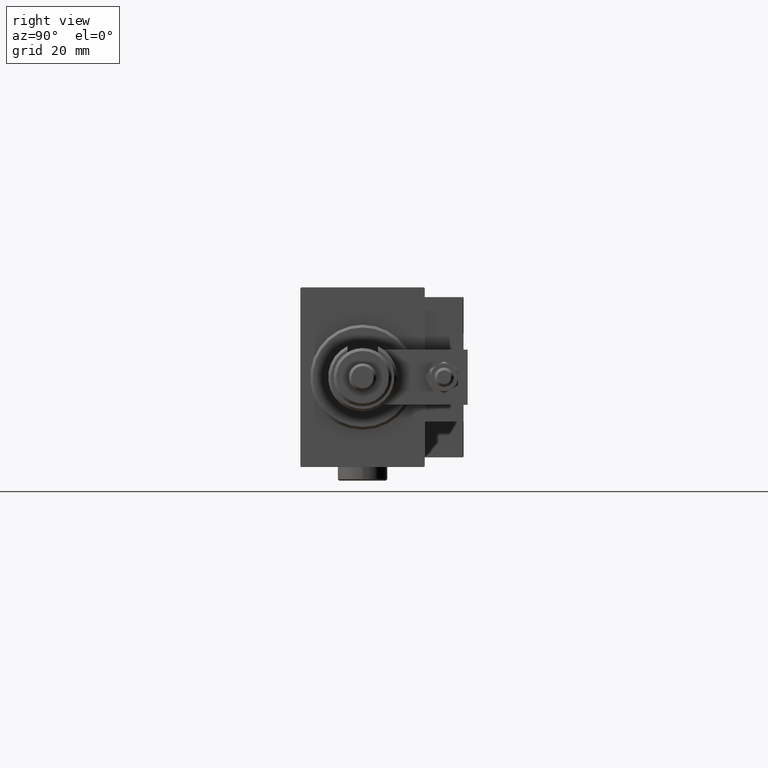
[diagram: clean part render]
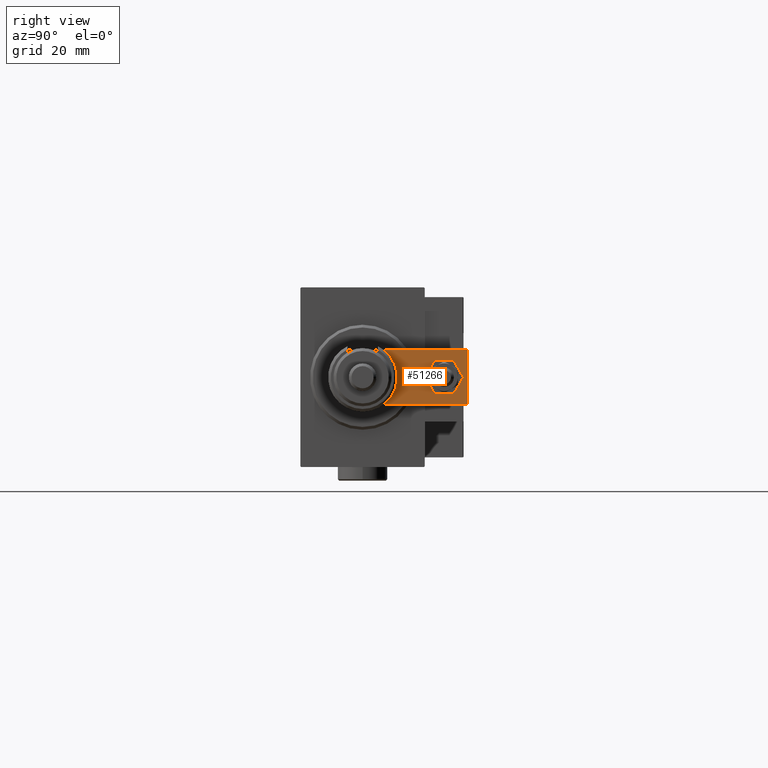
[diagram: same view with one face highlighted and labeled with its STEP entity id]
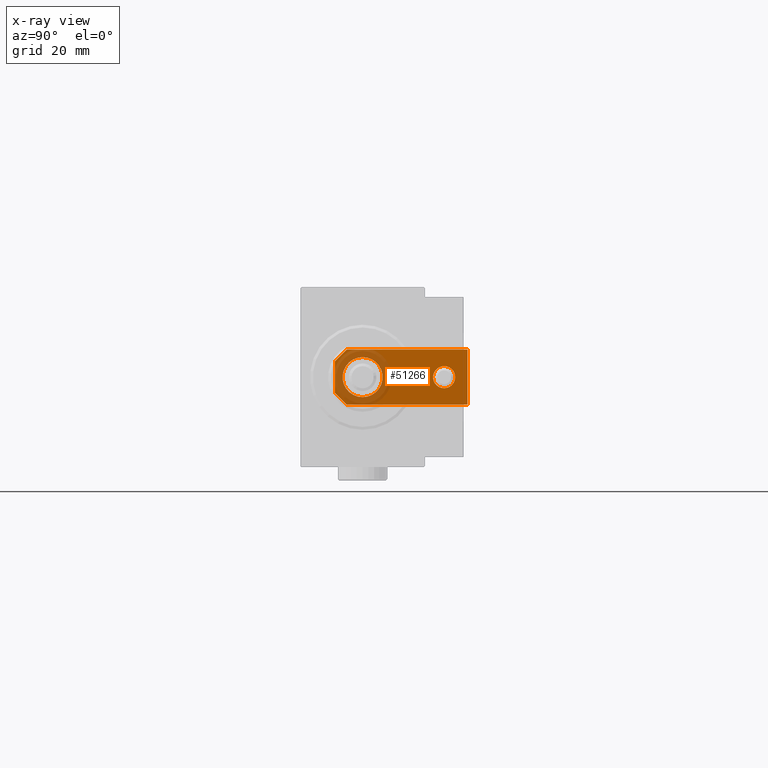
[diagram: x-ray of the same camera — body ghosted, the highlighted face saturated]
A machine part, right view. The second image highlights one B-rep face of the part: STEP entity #51266.
The next image is the same camera in x-ray: the body ghosted, the highlighted face saturated — about 24% of this face is hidden behind the body in this view.
In plain terms, the highlighted planar face has unit normal (1, 0, -0).
Its self-contained STEP definition (entity closure, byte-faithful):
#853 = AXIS2_PLACEMENT_3D ( 'NONE', #26587, #15063, #43314 ) ;
#1416 = DIRECTION ( 'NONE',  ( 0.7071067811865464625, -0.7071067811865486830, 0.000000000000000000 ) ) ;
#1948 = LINE ( 'NONE', #42559, #34772 ) ;
#2787 = VERTEX_POINT ( 'NONE', #26276 ) ;
#2942 = CARTESIAN_POINT ( 'NONE',  ( -10.00000000000000533, 4.240000000000021529, 6.000000000000000000 ) ) ;
#3790 = DIRECTION ( 'NONE',  ( -7.228014483236695816E-17, 1.000000000000000000, 0.000000000000000000 ) ) ;
#4914 = ORIENTED_EDGE ( 'NONE', *, *, #20985, .T. ) ;
#5747 = PLANE ( 'NONE',  #44102 ) ;
#5969 = ORIENTED_EDGE ( 'NONE', *, *, #39455, .F. ) ;
#6511 = ORIENTED_EDGE ( 'NONE', *, *, #9235, .T. ) ;
#6534 = CARTESIAN_POINT ( 'NONE',  ( -10.00000000000000000, 48.00000000000000000, 6.000000000000000000 ) ) ;
#9235 = EDGE_CURVE ( 'NONE', #47734, #15156, #35902, .T. ) ;
#9318 = DIRECTION ( 'NONE',  ( 0.000000000000000000, 0.000000000000000000, 1.000000000000000000 ) ) ;
#9348 = VECTOR ( 'NONE', #1416, 999.9999999999998863 ) ;
#9763 = VERTEX_POINT ( 'NONE', #22088 ) ;
#10138 = DIRECTION ( 'NONE',  ( -0.000000000000000000, 0.000000000000000000, 1.000000000000000000 ) ) ;
#12994 = EDGE_CURVE ( 'NONE', #43224, #46915, #41357, .T. ) ;
#13674 = VERTEX_POINT ( 'NONE', #38392 ) ;
#13713 = CARTESIAN_POINT ( 'NONE',  ( -9.629649721936179265E-32, 10.00000000000000178, 6.000000000000000000 ) ) ;
#15063 = DIRECTION ( 'NONE',  ( 0.000000000000000000, 0.000000000000000000, 1.000000000000000000 ) ) ;
#15071 = CARTESIAN_POINT ( 'NONE',  ( 4.000000000000000888, 39.50000000000000000, 6.000000000000000000 ) ) ;
#15156 = VERTEX_POINT ( 'NONE', #2942 ) ;
#15163 = DIRECTION ( 'NONE',  ( 0.000000000000000000, 0.000000000000000000, 1.000000000000000000 ) ) ;
#17548 = EDGE_LOOP ( 'NONE', ( #6511, #4914, #44144, #21901, #42616, #33721 ) ) ;
#17871 = ORIENTED_EDGE ( 'NONE', *, *, #48352, .F. ) ;
#18483 = ORIENTED_EDGE ( 'NONE', *, *, #36296, .F. ) ;
#20897 = EDGE_LOOP ( 'NONE', ( #17871, #5969 ) ) ;
#20985 = EDGE_CURVE ( 'NONE', #15156, #48659, #47207, .T. ) ;
#21068 = EDGE_CURVE ( 'NONE', #48659, #9763, #1948, .T. ) ;
#21412 = DIRECTION ( 'NONE',  ( 1.000000000000000000, 0.000000000000000000, 0.000000000000000000 ) ) ;
#21901 = ORIENTED_EDGE ( 'NONE', *, *, #49563, .T. ) ;
#22088 = CARTESIAN_POINT ( 'NONE',  ( 5.759999999999998010, 0.000000000000000000, 6.000000000000000000 ) ) ;
#22490 = FACE_BOUND ( 'NONE', #53760, .T. ) ;
#22536 = CARTESIAN_POINT ( 'NONE',  ( -2.880000000000006999, -2.879999999999998561, 6.000000000000000000 ) ) ;
#24236 = VECTOR ( 'NONE', #36002, 1000.000000000000000 ) ;
#25109 = CARTESIAN_POINT ( 'NONE',  ( 7.250000000000000000, 10.00000000000000355, 6.000000000000000000 ) ) ;
#25358 = CARTESIAN_POINT ( 'NONE',  ( 2.879999999999984350, -2.879999999999999005, 6.000000000000000000 ) ) ;
#26276 = CARTESIAN_POINT ( 'NONE',  ( -4.000000000000000888, 39.50000000000000000, 6.000000000000000000 ) ) ;
#26587 = CARTESIAN_POINT ( 'NONE',  ( -1.432611055310774642E-16, 39.50000000000000000, 6.000000000000000000 ) ) ;
#26863 = CARTESIAN_POINT ( 'NONE',  ( 0.000000000000000000, 0.000000000000000000, 6.000000000000000000 ) ) ;
#28668 = EDGE_CURVE ( 'NONE', #33452, #2787, #44384, .T. ) ;
#28727 = EDGE_CURVE ( 'NONE', #46915, #47734, #32433, .T. ) ;
#31601 = VERTEX_POINT ( 'NONE', #25109 ) ;
#32404 = CIRCLE ( 'NONE', #48167, 7.250000000000000000 ) ;
#32433 = LINE ( 'NONE', #52728, #24236 ) ;
#32838 = VECTOR ( 'NONE', #42090, 1000.000000000000114 ) ;
#33452 = VERTEX_POINT ( 'NONE', #15071 ) ;
#33721 = ORIENTED_EDGE ( 'NONE', *, *, #28727, .T. ) ;
#33877 = LINE ( 'NONE', #25358, #32838 ) ;
#33958 = CARTESIAN_POINT ( 'NONE',  ( -5.759999999999997122, 0.000000000000000000, 6.000000000000000000 ) ) ;
#34772 = VECTOR ( 'NONE', #35412, 1000.000000000000000 ) ;
#34842 = FACE_BOUND ( 'NONE', #20897, .T. ) ;
#35200 = ORIENTED_EDGE ( 'NONE', *, *, #28668, .F. ) ;
#35412 = DIRECTION ( 'NONE',  ( 1.000000000000000000, 0.000000000000000000, 0.000000000000000000 ) ) ;
#35636 = DIRECTION ( 'NONE',  ( 1.000000000000000000, 0.000000000000000000, 0.000000000000000000 ) ) ;
#35642 = DIRECTION ( 'NONE',  ( 0.000000000000000000, 0.000000000000000000, 1.000000000000000000 ) ) ;
#35902 = LINE ( 'NONE', #48779, #51915 ) ;
#36002 = DIRECTION ( 'NONE',  ( -1.000000000000000000, 0.000000000000000000, 0.000000000000000000 ) ) ;
#36296 = EDGE_CURVE ( 'NONE', #2787, #33452, #49036, .T. ) ;
#36449 = DIRECTION ( 'NONE',  ( -1.084202172485504434E-16, -1.000000000000000000, 0.000000000000000000 ) ) ;
#38298 = CARTESIAN_POINT ( 'NONE',  ( 10.00000000000000178, 48.00000000000000000, 6.000000000000000000 ) ) ;
#38392 = CARTESIAN_POINT ( 'NONE',  ( -7.250000000000000000, 10.00000000000000178, 6.000000000000000000 ) ) ;
#39219 = DIRECTION ( 'NONE',  ( 1.000000000000000000, 0.000000000000000000, 0.000000000000000000 ) ) ;
#39455 = EDGE_CURVE ( 'NONE', #31601, #13674, #32404, .T. ) ;
#39785 = CIRCLE ( 'NONE', #42409, 7.250000000000000000 ) ;
#40812 = CARTESIAN_POINT ( 'NONE',  ( 10.00000000000000533, 0.000000000000000000, 6.000000000000000000 ) ) ;
#40931 = DIRECTION ( 'NONE',  ( 1.000000000000000000, 0.000000000000000000, 0.000000000000000000 ) ) ;
#41357 = LINE ( 'NONE', #40812, #52974 ) ;
#42090 = DIRECTION ( 'NONE',  ( 0.7071067811865492381, 0.7071067811865457964, -0.000000000000000000 ) ) ;
#42409 = AXIS2_PLACEMENT_3D ( 'NONE', #13713, #9318, #21412 ) ;
#42559 = CARTESIAN_POINT ( 'NONE',  ( -10.00000000000000533, 0.000000000000000000, 6.000000000000000000 ) ) ;
#42616 = ORIENTED_EDGE ( 'NONE', *, *, #12994, .T. ) ;
#43044 = FACE_OUTER_BOUND ( 'NONE', #17548, .T. ) ;
#43224 = VERTEX_POINT ( 'NONE', #46491 ) ;
#43314 = DIRECTION ( 'NONE',  ( 1.000000000000000000, 0.000000000000000000, 0.000000000000000000 ) ) ;
#44102 = AXIS2_PLACEMENT_3D ( 'NONE', #26863, #10138, #35636 ) ;
#44129 = CARTESIAN_POINT ( 'NONE',  ( -9.629649721936179265E-32, 10.00000000000000178, 6.000000000000000000 ) ) ;
#44144 = ORIENTED_EDGE ( 'NONE', *, *, #21068, .T. ) ;
#44384 = CIRCLE ( 'NONE', #46107, 4.000000000000000888 ) ;
#46107 = AXIS2_PLACEMENT_3D ( 'NONE', #48882, #15163, #40931 ) ;
#46491 = CARTESIAN_POINT ( 'NONE',  ( 10.00000000000000533, 4.239999999999986890, 6.000000000000000000 ) ) ;
#46915 = VERTEX_POINT ( 'NONE', #38298 ) ;
#47207 = LINE ( 'NONE', #22536, #9348 ) ;
#47734 = VERTEX_POINT ( 'NONE', #6534 ) ;
#48167 = AXIS2_PLACEMENT_3D ( 'NONE', #44129, #35642, #39219 ) ;
#48352 = EDGE_CURVE ( 'NONE', #13674, #31601, #39785, .T. ) ;
#48659 = VERTEX_POINT ( 'NONE', #33958 ) ;
#48779 = CARTESIAN_POINT ( 'NONE',  ( -10.00000000000000000, 48.00000000000000000, 6.000000000000000000 ) ) ;
#48882 = CARTESIAN_POINT ( 'NONE',  ( -1.432611055310774642E-16, 39.50000000000000000, 6.000000000000000000 ) ) ;
#49036 = CIRCLE ( 'NONE', #853, 4.000000000000000888 ) ;
#49563 = EDGE_CURVE ( 'NONE', #9763, #43224, #33877, .T. ) ;
#51266 = ADVANCED_FACE ( 'NONE', ( #22490, #43044, #34842 ), #5747, .T. ) ;
#51915 = VECTOR ( 'NONE', #36449, 1000.000000000000000 ) ;
#52728 = CARTESIAN_POINT ( 'NONE',  ( 10.00000000000000178, 48.00000000000000000, 6.000000000000000000 ) ) ;
#52974 = VECTOR ( 'NONE', #3790, 1000.000000000000000 ) ;
#53760 = EDGE_LOOP ( 'NONE', ( #18483, #35200 ) ) ;